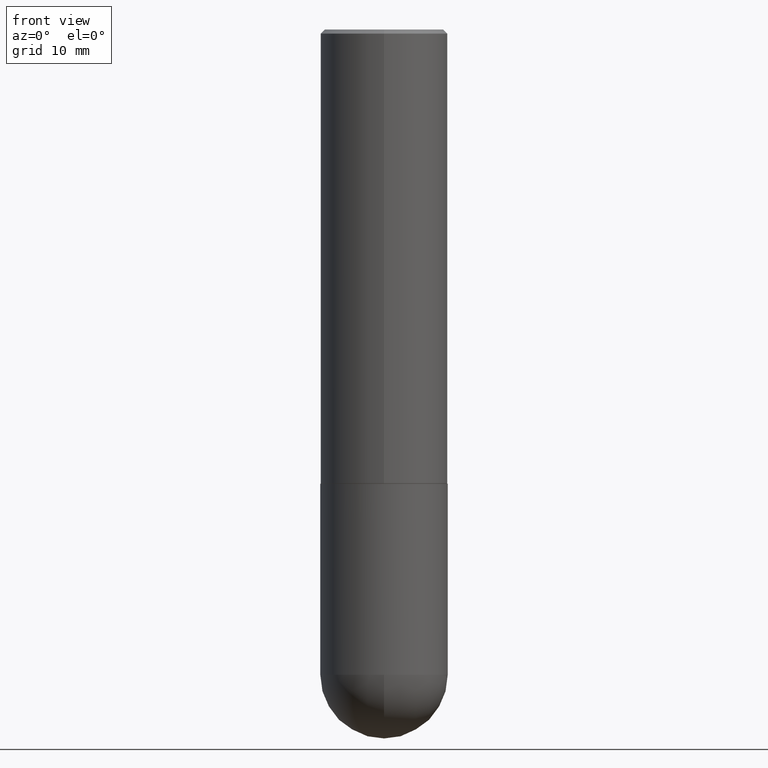
[diagram: clean part render]
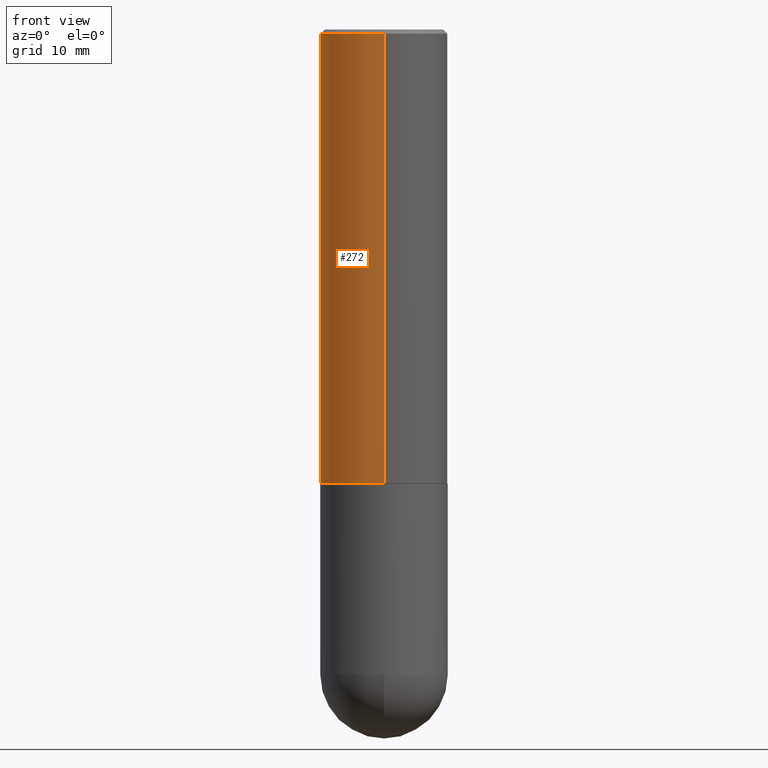
[diagram: same view with one face highlighted and labeled with its STEP entity id]
A machine part, front view. The second image highlights one B-rep face of the part: STEP entity #272.
In plain terms, the highlighted cylindrical surface (partial cylindrical patch) has radius 7.9997 mm, axis along (-0, 0, 1).
Its self-contained STEP definition (entity closure, byte-faithful):
#28 = CARTESIAN_POINT ( 'NONE',  ( 0.000000000000000000, 0.000000000000000000, 0.000000000000000000 ) ) ;
#54 = ORIENTED_EDGE ( 'NONE', *, *, #219, .T. ) ;
#77 = VERTEX_POINT ( 'NONE', #221 ) ;
#87 = VECTOR ( 'NONE', #192, 39.37007874015748143 ) ;
#100 = DIRECTION ( 'NONE',  ( -2.446054750560314291E-29, 3.490642233148008459E-15, 1.000000000000000000 ) ) ;
#107 = VERTEX_POINT ( 'NONE', #166 ) ;
#112 = CARTESIAN_POINT ( 'NONE',  ( -2.199284095337290265E-15, -0.3149500000000001743, 1.099377771329965583E-15 ) ) ;
#119 = DIRECTION ( 'NONE',  ( -2.446054750560314291E-29, 3.490642233148008459E-15, 1.000000000000000000 ) ) ;
#127 = FACE_OUTER_BOUND ( 'NONE', #239, .T. ) ;
#138 = AXIS2_PLACEMENT_3D ( 'NONE', #28, #312, #158 ) ;
#145 = ORIENTED_EDGE ( 'NONE', *, *, #345, .T. ) ;
#158 = DIRECTION ( 'NONE',  ( -6.982962677686264344E-15, -1.000000000000000000, 3.490642233148007670E-15 ) ) ;
#164 = CYLINDRICAL_SURFACE ( 'NONE', #138, 0.3149500000000001743 ) ;
#166 = CARTESIAN_POINT ( 'NONE',  ( 2.199284095337289871E-15, 0.3149499999999999522, -0.02000000000000117309 ) ) ;
#186 = CARTESIAN_POINT ( 'NONE',  ( 2.237854346276435985E-15, 0.3149500000000001743, -1.099377771329965583E-15 ) ) ;
#189 = VECTOR ( 'NONE', #249, 39.37007874015748143 ) ;
#192 = DIRECTION ( 'NONE',  ( -2.446054750560314291E-29, 3.490642233148008854E-15, 1.000000000000000000 ) ) ;
#195 = CARTESIAN_POINT ( 'NONE',  ( 4.892109501120646730E-31, -6.981284466296042310E-17, -0.02000000000000007327 ) ) ;
#219 = EDGE_CURVE ( 'NONE', #346, #278, #372, .T. ) ;
#221 = CARTESIAN_POINT ( 'NONE',  ( -2.160713844398143363E-15, -0.3149500000000000632, -0.01999999999999896999 ) ) ;
#239 = EDGE_LOOP ( 'NONE', ( #294, #54, #145, #241 ) ) ;
#240 = EDGE_CURVE ( 'NONE', #346, #107, #355, .T. ) ;
#241 = ORIENTED_EDGE ( 'NONE', *, *, #369, .F. ) ;
#249 = DIRECTION ( 'NONE',  ( -2.446054750560314291E-29, 3.490642233148008854E-15, 1.000000000000000000 ) ) ;
#259 = DIRECTION ( 'NONE',  ( -6.982962677686265922E-15, -1.000000000000000000, 3.469564049740290009E-15 ) ) ;
#272 = ADVANCED_FACE ( 'NONE', ( #127 ), #164, .T. ) ;
#278 = VERTEX_POINT ( 'NONE', #286 ) ;
#286 = CARTESIAN_POINT ( 'NONE',  ( -2.199284095337236228E-15, -0.3149500000000081124, -2.243099999999998317 ) ) ;
#294 = ORIENTED_EDGE ( 'NONE', *, *, #240, .F. ) ;
#312 = DIRECTION ( 'NONE',  ( -2.446054750560314291E-29, 3.490642233148008459E-15, 1.000000000000000000 ) ) ;
#319 = AXIS2_PLACEMENT_3D ( 'NONE', #195, #100, #363 ) ;
#342 = AXIS2_PLACEMENT_3D ( 'NONE', #411, #119, #259 ) ;
#345 = EDGE_CURVE ( 'NONE', #278, #77, #401, .T. ) ;
#346 = VERTEX_POINT ( 'NONE', #382 ) ;
#351 = CIRCLE ( 'NONE', #319, 0.3149500000000000077 ) ;
#355 = LINE ( 'NONE', #186, #87 ) ;
#363 = DIRECTION ( 'NONE',  ( -6.982962677686265922E-15, -1.000000000000000000, 3.496670018878889100E-15 ) ) ;
#369 = EDGE_CURVE ( 'NONE', #107, #77, #351, .T. ) ;
#372 = CIRCLE ( 'NONE', #342, 0.3149500000000002853 ) ;
#382 = CARTESIAN_POINT ( 'NONE',  ( 2.237854346276464384E-15, 0.3149499999999924027, -2.243100000000000538 ) ) ;
#401 = LINE ( 'NONE', #112, #189 ) ;
#411 = CARTESIAN_POINT ( 'NONE',  ( 5.486745410981840048E-29, -7.829859593174295686E-15, -2.243099999999999650 ) ) ;